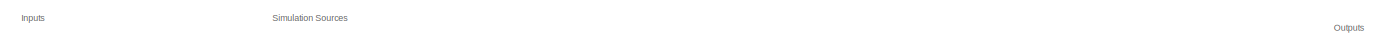
[diagram: root canvas - part 1/2, full width, top band]
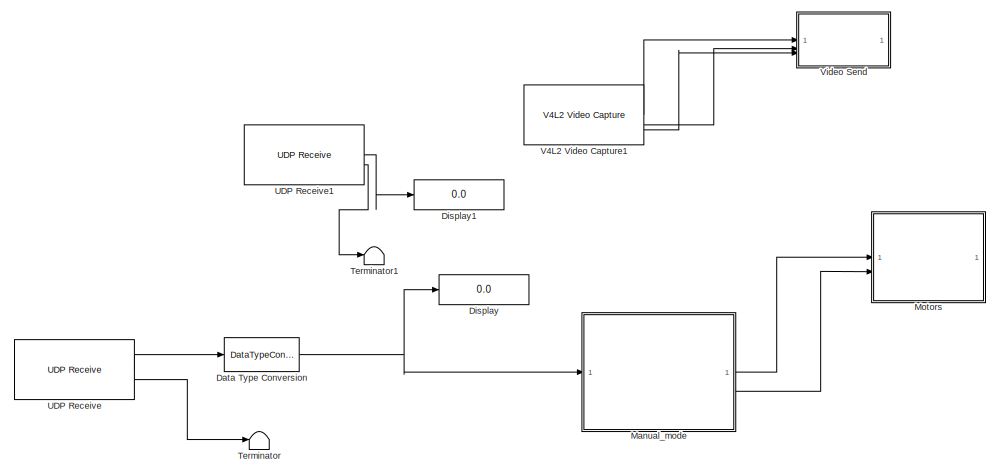
[diagram: root canvas - part 2/2, left side, full height]
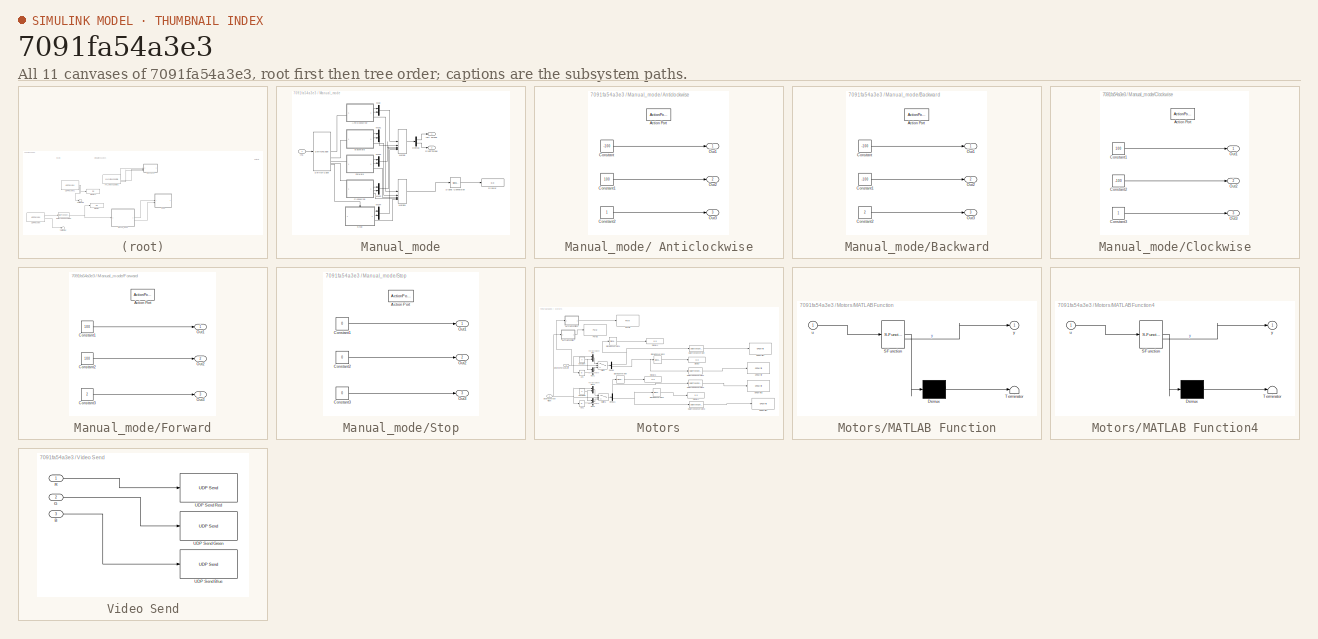
[diagram: thumbnail index - all 11 canvases of the model, root first then tree order]
MODEL slx_7091fa54a3e3
KIND model
CONFIG AbsTol = auto
CONFIG EnableMultiTasking = on
CONFIG FixedStep = auto
CONFIG MaxStep = auto
CONFIG MinStep = auto
CONFIG RelTol = 1e-3
CONFIG SampleTimeConstraint = Unconstrained
CONFIG SolverName = FixedStepAuto
CONFIG StartTime = 0.0
CONFIG StopTime = 1000
BLOCK [DataTypeConversion] Data Type Conversion
  OutDataTypeStr = double
  RndMeth = Round
  SaturateOnIntegerOverflow = off
BLOCK [Display] Display
  Decimation = 1
BLOCK [Display] Display1
  Decimation = 1
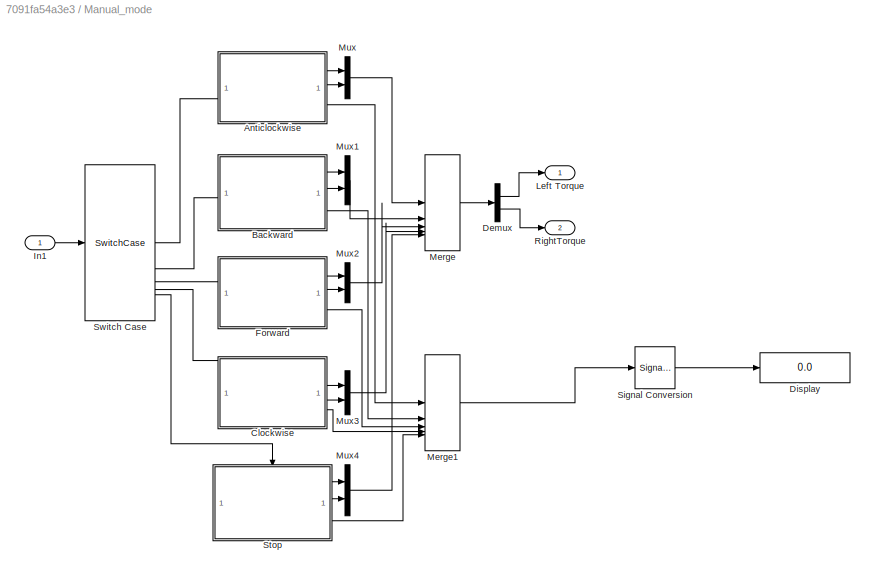
BLOCK [SubSystem] Manual_mode
  TreatAsAtomicUnit = on
BLOCK [SubSystem] Manual_mode/ Anticlockwise
  TreatAsAtomicUnit = on
BLOCK [ActionPort] Manual_mode/ Anticlockwise/Action Port
  ActionPortLabel = case [ 2 ]:
BLOCK [Constant] Manual_mode/ Anticlockwise/Constant
  OutDataTypeStr = int16
  Value = -100
BLOCK [Constant] Manual_mode/ Anticlockwise/Constant1
  OutDataTypeStr = int16
  Value = 100
BLOCK [Constant] Manual_mode/ Anticlockwise/Constant2
  OutDataTypeStr = uint8
BLOCK [Outport] Manual_mode/ Anticlockwise/Out1
  InitialOutput = 80
  VectorParamsAs1DForOutWhenUnconnected = off
BLOCK [Outport] Manual_mode/ Anticlockwise/Out2
  InitialOutput = 120
  Port = 2
  VectorParamsAs1DForOutWhenUnconnected = off
BLOCK [Outport] Manual_mode/ Anticlockwise/Out3
  InitialOutput = 120
  Port = 3
  VectorParamsAs1DForOutWhenUnconnected = off
BLOCK [SubSystem] Manual_mode/Backward
  TreatAsAtomicUnit = on
BLOCK [ActionPort] Manual_mode/Backward/Action Port
  ActionPortLabel = case [ 3 ]:
BLOCK [Constant] Manual_mode/Backward/Constant
  OutDataTypeStr = int16
  Value = -100
BLOCK [Constant] Manual_mode/Backward/Constant1
  OutDataTypeStr = int16
  Value = -100
BLOCK [Constant] Manual_mode/Backward/Constant2
  OutDataTypeStr = uint8
  Value = 2
BLOCK [Outport] Manual_mode/Backward/Out1
  InitialOutput = -100
  VectorParamsAs1DForOutWhenUnconnected = off
BLOCK [Outport] Manual_mode/Backward/Out2
  InitialOutput = -100
  Port = 2
  VectorParamsAs1DForOutWhenUnconnected = off
BLOCK [Outport] Manual_mode/Backward/Out3
  InitialOutput = 120
  Port = 3
  VectorParamsAs1DForOutWhenUnconnected = off
BLOCK [SubSystem] Manual_mode/Clockwise
  TreatAsAtomicUnit = on
BLOCK [ActionPort] Manual_mode/Clockwise/Action Port
  ActionPortLabel = case [ 5 ]:
BLOCK [Constant] Manual_mode/Clockwise/Constant1
  OutDataTypeStr = int16
  Value = 100
BLOCK [Constant] Manual_mode/Clockwise/Constant2
  OutDataTypeStr = int16
  Value = -100
BLOCK [Constant] Manual_mode/Clockwise/Constant3
  OutDataTypeStr = uint8
BLOCK [Outport] Manual_mode/Clockwise/Out1
  InitialOutput = 0
  VectorParamsAs1DForOutWhenUnconnected = off
BLOCK [Outport] Manual_mode/Clockwise/Out2
  InitialOutput = 0
  Port = 2
  VectorParamsAs1DForOutWhenUnconnected = off
BLOCK [Outport] Manual_mode/Clockwise/Out3
  InitialOutput = 120
  Port = 3
  VectorParamsAs1DForOutWhenUnconnected = off
BLOCK [Demux] Manual_mode/Demux
  Outputs = 2
BLOCK [Display] Manual_mode/Display
  Decimation = 1
BLOCK [SubSystem] Manual_mode/Forward
  TreatAsAtomicUnit = on
BLOCK [ActionPort] Manual_mode/Forward/Action Port
  ActionPortLabel = case [ 4 ]:
BLOCK [Constant] Manual_mode/Forward/Constant1
  OutDataTypeStr = int16
  Value = 100
BLOCK [Constant] Manual_mode/Forward/Constant2
  OutDataTypeStr = int16
  Value = 100
BLOCK [Constant] Manual_mode/Forward/Constant3
  OutDataTypeStr = uint8
  Value = 2
BLOCK [Outport] Manual_mode/Forward/Out1
  InitialOutput = 0
  VectorParamsAs1DForOutWhenUnconnected = off
BLOCK [Outport] Manual_mode/Forward/Out2
  InitialOutput = 0
  Port = 2
  VectorParamsAs1DForOutWhenUnconnected = off
BLOCK [Outport] Manual_mode/Forward/Out3
  InitialOutput = 120
  Port = 3
  VectorParamsAs1DForOutWhenUnconnected = off
BLOCK [Inport] Manual_mode/In1
BLOCK [Outport] Manual_mode/Left Torque
  VectorParamsAs1DForOutWhenUnconnected = off
BLOCK [Merge] Manual_mode/Merge
  Inputs = 5
BLOCK [Merge] Manual_mode/Merge1
  InitialOutput = 5
  Inputs = 5
BLOCK [Mux] Manual_mode/Mux
  DisplayOption = bar
  Inputs = 2
BLOCK [Mux] Manual_mode/Mux1
  DisplayOption = bar
  Inputs = 2
BLOCK [Mux] Manual_mode/Mux2
  DisplayOption = bar
  Inputs = 2
BLOCK [Mux] Manual_mode/Mux3
  DisplayOption = bar
  Inputs = 2
BLOCK [Mux] Manual_mode/Mux4
  DisplayOption = bar
  Inputs = 2
BLOCK [Outport] Manual_mode/RightTorque
  Port = 2
  VectorParamsAs1DForOutWhenUnconnected = off
BLOCK [SignalConversion] Manual_mode/Signal Conversion
  OverrideOpt = off
BLOCK [SubSystem] Manual_mode/Stop
  TreatAsAtomicUnit = on
BLOCK [ActionPort] Manual_mode/Stop/Action Port
  ActionPortLabel = default:
BLOCK [Constant] Manual_mode/Stop/Constant1
  OutDataTypeStr = int16
  Value = 0
BLOCK [Constant] Manual_mode/Stop/Constant2
  OutDataTypeStr = int16
  Value = 0
BLOCK [Constant] Manual_mode/Stop/Constant3
  OutDataTypeStr = uint8
  Value = 0
BLOCK [Outport] Manual_mode/Stop/Out1
  InitialOutput = 0
  VectorParamsAs1DForOutWhenUnconnected = off
BLOCK [Outport] Manual_mode/Stop/Out2
  InitialOutput = 0
  Port = 2
  VectorParamsAs1DForOutWhenUnconnected = off
BLOCK [Outport] Manual_mode/Stop/Out3
  InitialOutput = 0
  Port = 3
  VectorParamsAs1DForOutWhenUnconnected = off
BLOCK [SwitchCase] Manual_mode/Switch Case
  AttributesFormatString = Priority = %<Priority>
  CaseConditions = {2, 3, 4, 5}
  Priority = 1
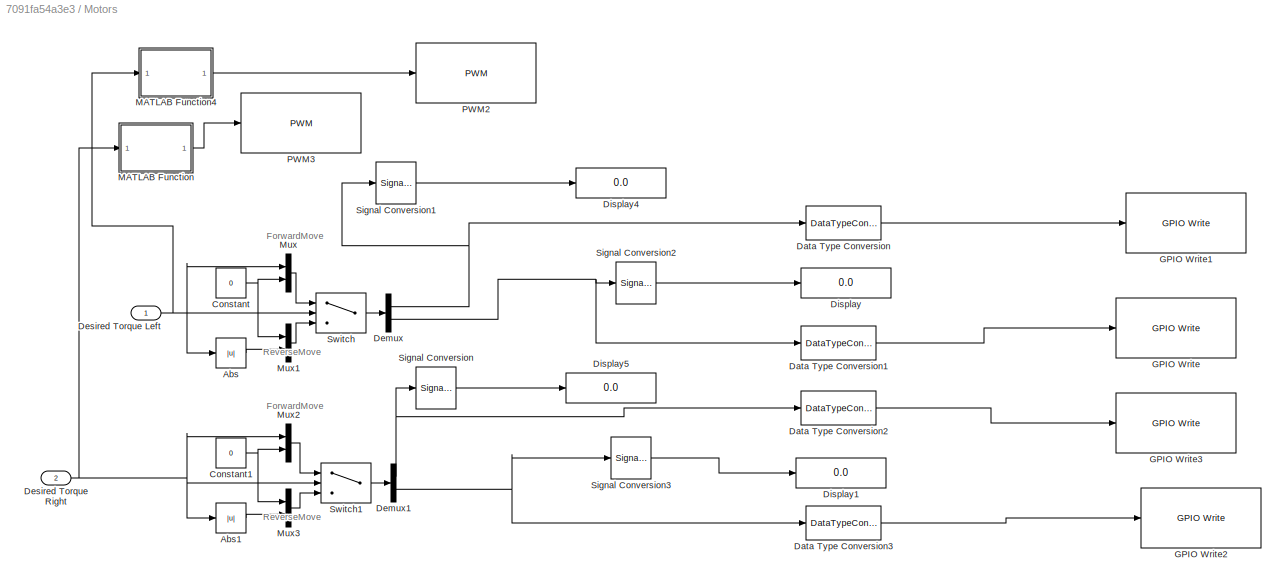
BLOCK [SubSystem] Motors
  AttributesFormatString = Priority = %<Priority>
  Priority = 15
BLOCK [Abs] Motors/Abs
  OutDataTypeStr = int16
  RndMeth = Round
  SaturateOnIntegerOverflow = off
BLOCK [Abs] Motors/Abs1
  OutDataTypeStr = int16
  RndMeth = Round
  SaturateOnIntegerOverflow = off
BLOCK [Constant] Motors/Constant
  OutDataTypeStr = int16
  Value = 0
BLOCK [Constant] Motors/Constant1
  OutDataTypeStr = int16
  Value = 0
BLOCK [DataTypeConversion] Motors/Data Type Conversion
  OutDataTypeStr = boolean
  RndMeth = Nearest
  SaturateOnIntegerOverflow = off
BLOCK [DataTypeConversion] Motors/Data Type Conversion1
  OutDataTypeStr = boolean
  RndMeth = Round
  SaturateOnIntegerOverflow = off
BLOCK [DataTypeConversion] Motors/Data Type Conversion2
  OutDataTypeStr = boolean
  RndMeth = Round
  SaturateOnIntegerOverflow = off
BLOCK [DataTypeConversion] Motors/Data Type Conversion3
  OutDataTypeStr = boolean
  RndMeth = Round
  SaturateOnIntegerOverflow = off
BLOCK [Demux] Motors/Demux
  Outputs = 2
BLOCK [Demux] Motors/Demux1
  Outputs = 2
BLOCK [Inport] Motors/Desired Torque Left
BLOCK [Inport] Motors/Desired Torque Right
  Port = 2
BLOCK [Display] Motors/Display
  Decimation = 1
BLOCK [Display] Motors/Display1
  Decimation = 1
BLOCK [Display] Motors/Display4
  Decimation = 1
BLOCK [Display] Motors/Display5
  Decimation = 1
BLOCK [Reference] Motors/GPIO Write  REF=raspberrypiBasiclib/GPIO Write
  SourceBlock = raspberrypiBasiclib/GPIO Write
  SourceType = GPIO Write
BLOCK [Reference] Motors/GPIO Write1  REF=raspberrypiBasiclib/GPIO Write
  SourceBlock = raspberrypiBasiclib/GPIO Write
  SourceType = GPIO Write
BLOCK [Reference] Motors/GPIO Write2  REF=raspberrypiBasiclib/GPIO Write
  SourceBlock = raspberrypiBasiclib/GPIO Write
  SourceType = GPIO Write
BLOCK [Reference] Motors/GPIO Write3  REF=raspberrypiBasiclib/GPIO Write
  SourceBlock = raspberrypiBasiclib/GPIO Write
  SourceType = GPIO Write
BLOCK [SubSystem] Motors/MATLAB Function
  ErrorFcn = Stateflow.Translate.translate
  LibrarySourceBlock = simulink/User-Defined\nFunctions/MATLAB Function
  PermitHierarchicalResolution = ExplicitOnly
  SFBlockType = MATLAB Function
  TreatAsAtomicUnit = on
BLOCK [Demux] Motors/MATLAB Function/ Demux 
  Outputs = 1
BLOCK [S-Function] Motors/MATLAB Function/ SFunction 
  EnableBusSupport = on
  FunctionName = sf_sfun
  PortCounts = [1 2]
  SFcnIsStateOwnerBlock = off
  SFunctionDeploymentMode = off
  Tag = Stateflow S-Function 5
BLOCK [Terminator] Motors/MATLAB Function/ Terminator 
BLOCK [Inport] Motors/MATLAB Function/u
BLOCK [Outport] Motors/MATLAB Function/y
BLOCK [SubSystem] Motors/MATLAB Function4
  ErrorFcn = Stateflow.Translate.translate
  LibrarySourceBlock = simulink/User-Defined\nFunctions/MATLAB Function
  PermitHierarchicalResolution = ExplicitOnly
  SFBlockType = MATLAB Function
  TreatAsAtomicUnit = on
BLOCK [Demux] Motors/MATLAB Function4/ Demux 
  Outputs = 1
BLOCK [S-Function] Motors/MATLAB Function4/ SFunction 
  EnableBusSupport = on
  FunctionName = sf_sfun
  PortCounts = [1 2]
  SFcnIsStateOwnerBlock = off
  SFunctionDeploymentMode = off
  Tag = Stateflow S-Function 6
BLOCK [Terminator] Motors/MATLAB Function4/ Terminator 
BLOCK [Inport] Motors/MATLAB Function4/u
BLOCK [Outport] Motors/MATLAB Function4/y
BLOCK [Mux] Motors/Mux
  DisplayOption = bar
  Inputs = 2
BLOCK [Mux] Motors/Mux1
  DisplayOption = bar
  Inputs = 2
BLOCK [Mux] Motors/Mux2
  DisplayOption = bar
  Inputs = 2
BLOCK [Mux] Motors/Mux3
  DisplayOption = bar
  Inputs = 2
BLOCK [Reference] Motors/PWM2  REF=raspberrypiBasiclib/PWM
  SourceBlock = raspberrypiBasiclib/PWM
  SourceType = raspi.internal.PWMBlock
BLOCK [Reference] Motors/PWM3  REF=raspberrypiBasiclib/PWM
  SourceBlock = raspberrypiBasiclib/PWM
  SourceType = raspi.internal.PWMBlock
BLOCK [SignalConversion] Motors/Signal Conversion
  OverrideOpt = off
BLOCK [SignalConversion] Motors/Signal Conversion1
  OverrideOpt = off
BLOCK [SignalConversion] Motors/Signal Conversion2
  OverrideOpt = off
BLOCK [SignalConversion] Motors/Signal Conversion3
  OverrideOpt = off
BLOCK [Switch] Motors/Switch
  Criteria = u2 > Threshold
  InputSameDT = off
  SaturateOnIntegerOverflow = off
BLOCK [Switch] Motors/Switch1
  Criteria = u2 > Threshold
  InputSameDT = off
  SaturateOnIntegerOverflow = off
BLOCK [Terminator] Terminator
BLOCK [Terminator] Terminator1
BLOCK [Reference] UDP Receive  REF=raspberrypiNetworklib/UDP Receive
  SourceBlock = raspberrypiNetworklib/UDP Receive
  SourceType = UDP Receive
BLOCK [Reference] UDP Receive1  REF=raspberrypiNetworklib/UDP Receive
  SourceBlock = raspberrypiNetworklib/UDP Receive
  SourceType = UDP Receive
BLOCK [Reference] V4L2 Video Capture1  REF=raspberrypiAVlib/V4L2 Video Capture
  SourceBlock = raspberrypiAVlib/V4L2 Video Capture
  SourceType = codertarget.raspi.internal.Raspiv4l2Capture
BLOCK [SubSystem] Video Send
  TreatAsAtomicUnit = on
BLOCK [Inport] Video Send/B
  Port = 3
BLOCK [Inport] Video Send/G
  Port = 2
BLOCK [Inport] Video Send/R
BLOCK [Reference] Video Send/UDP Send Blue  REF=embedlinuxNetworklib/UDP Send
  SourceBlock = embedlinuxNetworklib/UDP Send
  SourceType = UDP Send
BLOCK [Reference] Video Send/UDP Send Green  REF=embedlinuxNetworklib/UDP Send
  SourceBlock = embedlinuxNetworklib/UDP Send
  SourceType = UDP Send
BLOCK [Reference] Video Send/UDP Send Red  REF=embedlinuxNetworklib/UDP Send
  SourceBlock = embedlinuxNetworklib/UDP Send
  SourceType = UDP Send
ANNOTATION (root): Inputs
ANNOTATION (root): Outputs
ANNOTATION (root): Simulation Sources
ANNOTATION Motors: ForwardMove
ANNOTATION Motors: ReverseMove
NET Data Type Conversion:1 -> Display:1, Manual_mode:1
LINE Manual_mode/ Anticlockwise/Constant1:1 -> Manual_mode/ Anticlockwise/Out2:1
LINE Manual_mode/ Anticlockwise/Constant2:1 -> Manual_mode/ Anticlockwise/Out3:1
LINE Manual_mode/ Anticlockwise/Constant:1 -> Manual_mode/ Anticlockwise/Out1:1
LINE Manual_mode/ Anticlockwise:1 -> Manual_mode/Mux:1
LINE Manual_mode/ Anticlockwise:2 -> Manual_mode/Mux:2
LINE Manual_mode/ Anticlockwise:3 -> Manual_mode/Merge1:1
LINE Manual_mode/Backward/Constant1:1 -> Manual_mode/Backward/Out2:1
LINE Manual_mode/Backward/Constant2:1 -> Manual_mode/Backward/Out3:1
LINE Manual_mode/Backward/Constant:1 -> Manual_mode/Backward/Out1:1
LINE Manual_mode/Backward:1 -> Manual_mode/Mux1:1
LINE Manual_mode/Backward:2 -> Manual_mode/Mux1:2
LINE Manual_mode/Backward:3 -> Manual_mode/Merge1:2
LINE Manual_mode/Clockwise/Constant1:1 -> Manual_mode/Clockwise/Out1:1
LINE Manual_mode/Clockwise/Constant2:1 -> Manual_mode/Clockwise/Out2:1
LINE Manual_mode/Clockwise/Constant3:1 -> Manual_mode/Clockwise/Out3:1
LINE Manual_mode/Clockwise:1 -> Manual_mode/Mux3:1
LINE Manual_mode/Clockwise:2 -> Manual_mode/Mux3:2
LINE Manual_mode/Clockwise:3 -> Manual_mode/Merge1:4
LINE Manual_mode/Demux:1 -> Manual_mode/Left Torque:1
LINE Manual_mode/Demux:2 -> Manual_mode/RightTorque:1
LINE Manual_mode/Forward/Constant1:1 -> Manual_mode/Forward/Out1:1
LINE Manual_mode/Forward/Constant2:1 -> Manual_mode/Forward/Out2:1
LINE Manual_mode/Forward/Constant3:1 -> Manual_mode/Forward/Out3:1
LINE Manual_mode/Forward:1 -> Manual_mode/Mux2:1
LINE Manual_mode/Forward:2 -> Manual_mode/Mux2:2
LINE Manual_mode/Forward:3 -> Manual_mode/Merge1:3
LINE Manual_mode/In1:1 -> Manual_mode/Switch Case:1
LINE Manual_mode/Merge1:1 -> Manual_mode/Signal Conversion:1
LINE Manual_mode/Merge:1 -> Manual_mode/Demux:1
LINE Manual_mode/Mux1:1 -> Manual_mode/Merge:2
LINE Manual_mode/Mux2:1 -> Manual_mode/Merge:3
LINE Manual_mode/Mux3:1 -> Manual_mode/Merge:4
LINE Manual_mode/Mux4:1 -> Manual_mode/Merge:5
LINE Manual_mode/Mux:1 -> Manual_mode/Merge:1
LINE Manual_mode/Signal Conversion:1 -> Manual_mode/Display:1
LINE Manual_mode/Stop/Constant1:1 -> Manual_mode/Stop/Out1:1
LINE Manual_mode/Stop/Constant2:1 -> Manual_mode/Stop/Out2:1
LINE Manual_mode/Stop/Constant3:1 -> Manual_mode/Stop/Out3:1
LINE Manual_mode/Stop:1 -> Manual_mode/Mux4:1
LINE Manual_mode/Stop:2 -> Manual_mode/Mux4:2
LINE Manual_mode/Stop:3 -> Manual_mode/Merge1:5
LINE Manual_mode/Switch Case:1 -> Manual_mode/ Anticlockwise:ifaction
LINE Manual_mode/Switch Case:2 -> Manual_mode/Backward:ifaction
LINE Manual_mode/Switch Case:3 -> Manual_mode/Forward:ifaction
LINE Manual_mode/Switch Case:4 -> Manual_mode/Clockwise:ifaction
LINE Manual_mode/Switch Case:5 -> Manual_mode/Stop:ifaction
LINE Manual_mode:1 -> Motors:1
LINE Manual_mode:2 -> Motors:2
LINE Motors/Abs1:1 -> Motors/Mux3:2
LINE Motors/Abs:1 -> Motors/Mux1:2
NET Motors/Constant1:1 -> Motors/Mux2:2, Motors/Mux3:1
NET Motors/Constant:1 -> Motors/Mux1:1, Motors/Mux:2
LINE Motors/Data Type Conversion1:1 -> Motors/GPIO Write:1
LINE Motors/Data Type Conversion2:1 -> Motors/GPIO Write3:1
LINE Motors/Data Type Conversion3:1 -> Motors/GPIO Write2:1
LINE Motors/Data Type Conversion:1 -> Motors/GPIO Write1:1
NET Motors/Demux1:1 -> Motors/Data Type Conversion2:1, Motors/Signal Conversion:1
NET Motors/Demux1:2 -> Motors/Data Type Conversion3:1, Motors/Signal Conversion3:1
NET Motors/Demux:1 -> Motors/Data Type Conversion:1, Motors/Signal Conversion1:1
NET Motors/Demux:2 -> Motors/Data Type Conversion1:1, Motors/Signal Conversion2:1
NET Motors/Desired Torque Left:1 -> Motors/Abs:1, Motors/MATLAB Function4:1, Motors/Mux:1, Motors/Switch:2
NET Motors/Desired Torque Right:1 -> Motors/Abs1:1, Motors/MATLAB Function:1, Motors/Mux2:1, Motors/Switch1:2
LINE Motors/MATLAB Function4:1 -> Motors/PWM2:1
LINE Motors/MATLAB Function:1 -> Motors/PWM3:1
LINE Motors/Mux1:1 -> Motors/Switch:3
LINE Motors/Mux2:1 -> Motors/Switch1:1
LINE Motors/Mux3:1 -> Motors/Switch1:3
LINE Motors/Mux:1 -> Motors/Switch:1
LINE Motors/Signal Conversion1:1 -> Motors/Display4:1
LINE Motors/Signal Conversion2:1 -> Motors/Display:1
LINE Motors/Signal Conversion3:1 -> Motors/Display1:1
LINE Motors/Signal Conversion:1 -> Motors/Display5:1
LINE Motors/Switch1:1 -> Motors/Demux1:1
LINE Motors/Switch:1 -> Motors/Demux:1
LINE UDP Receive1:1 -> Display1:1
LINE UDP Receive1:2 -> Terminator1:1
LINE UDP Receive:1 -> Data Type Conversion:1
LINE UDP Receive:2 -> Terminator:1
LINE V4L2 Video Capture1:1 -> Video Send:1
LINE V4L2 Video Capture1:2 -> Video Send:2
LINE V4L2 Video Capture1:3 -> Video Send:3
LINE Video Send/B:1 -> Video Send/UDP Send Blue:1
LINE Video Send/G:1 -> Video Send/UDP Send Green:1
LINE Video Send/R:1 -> Video Send/UDP Send Red:1
note: NET lines group one-source signal fan-out (src -> all destinations, sorted); 1:1 wires keep LINE
CHART Motors/MATLAB Function4 states=1 transitions=1
  STATE_LABEL 'eML_blk_kernel()'
  STATE_LABEL 'SCRIPT:\nfunction y = fcn(u)\ny=abs(u);\ny =y/100;\nend\n'
CHART Motors/MATLAB Function states=1 transitions=1
  STATE_LABEL 'eML_blk_kernel()'
  STATE_LABEL 'SCRIPT:\nfunction y = fcn(u)\ny=abs(u);\ny =y/100;\nend'
CHART  states=0 transitions=0
CHART  states=0 transitions=0
